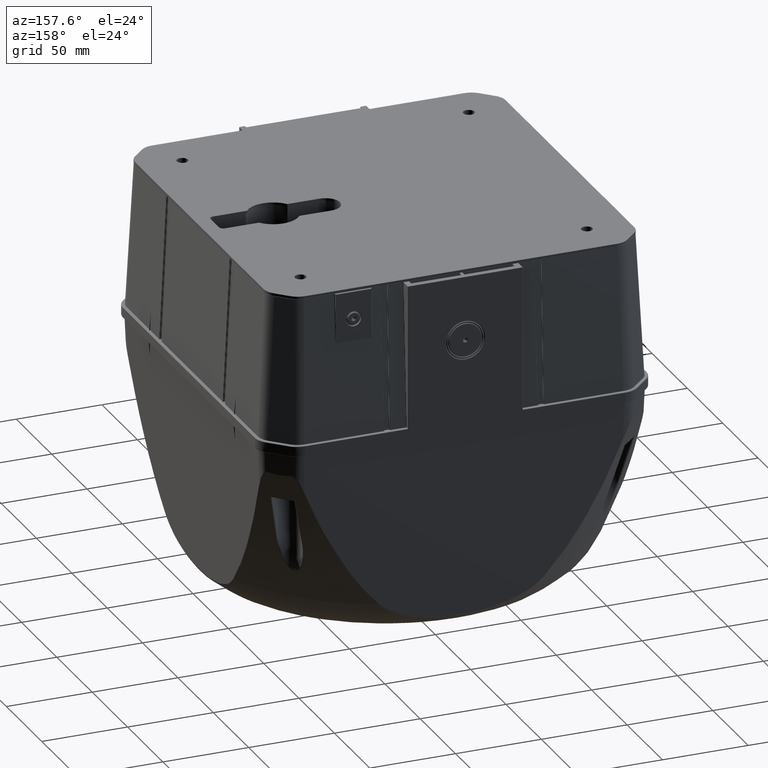
[diagram: clean part render]
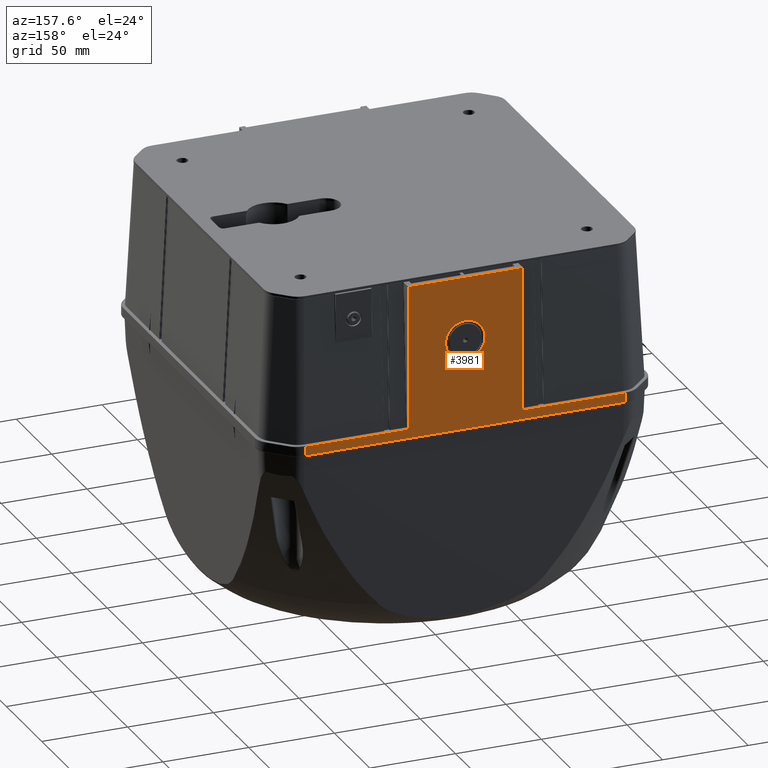
[diagram: same view with one face highlighted and labeled with its STEP entity id]
A machine part, auxiliary view. The second image highlights one B-rep face of the part: STEP entity #3981.
In plain terms, the highlighted planar face has unit normal (-0, -1, 0).
Its self-contained STEP definition (entity closure, byte-faithful):
#3981=ADVANCED_FACE('',(#4734,#4735),#4417,.F.);
#4417=PLANE('',#23812);
#4734=FACE_BOUND('',#6128,.T.);
#4735=FACE_BOUND('',#6129,.T.);
#6128=EDGE_LOOP('',(#13992));
#6129=EDGE_LOOP('',(#13993,#13994,#13995,#13996,#13997,#13998,#13999,#14000,
#14001,#14002));
#6721=LINE('',#37879,#7948);
#6728=LINE('',#37982,#7955);
#6855=LINE('',#40123,#8082);
#7069=LINE('',#42302,#8296);
#7088=LINE('',#42938,#8315);
#7175=LINE('',#43523,#8402);
#7462=LINE('',#46799,#8689);
#7463=LINE('',#46820,#8690);
#7948=VECTOR('',#25989,1.);
#7955=VECTOR('',#26040,1.);
#8082=VECTOR('',#26851,1.);
#8296=VECTOR('',#27947,1.);
#8315=VECTOR('',#28016,1.);
#8402=VECTOR('',#28267,1.);
#8689=VECTOR('',#29860,1.);
#8690=VECTOR('',#29861,1.);
#13992=ORIENTED_EDGE('',*,*,#19797,.F.);
#13993=ORIENTED_EDGE('',*,*,#19107,.T.);
#13994=ORIENTED_EDGE('',*,*,#18152,.T.);
#13995=ORIENTED_EDGE('',*,*,#18149,.T.);
#13996=ORIENTED_EDGE('',*,*,#18537,.T.);
#13997=ORIENTED_EDGE('',*,*,#18125,.T.);
#13998=ORIENTED_EDGE('',*,*,#18128,.T.);
#13999=ORIENTED_EDGE('',*,*,#19056,.T.);
#14000=ORIENTED_EDGE('',*,*,#19887,.T.);
#14001=ORIENTED_EDGE('',*,*,#19236,.T.);
#14002=ORIENTED_EDGE('',*,*,#19886,.F.);
#15990=VERTEX_POINT('',#37854);
#15994=VERTEX_POINT('',#37878);
#15995=VERTEX_POINT('',#37883);
#16008=VERTEX_POINT('',#37960);
#16009=VERTEX_POINT('',#37979);
#16012=VERTEX_POINT('',#37986);
#16557=VERTEX_POINT('',#42303);
#16588=VERTEX_POINT('',#42866);
#16628=VERTEX_POINT('',#43447);
#16632=VERTEX_POINT('',#43522);
#16948=VERTEX_POINT('',#46466);
#18125=EDGE_CURVE('',#15990,#15994,#6721,.T.);
#18128=EDGE_CURVE('',#15994,#15995,#20745,.T.);
#18149=EDGE_CURVE('',#16009,#16008,#6728,.T.);
#18152=EDGE_CURVE('',#16012,#16009,#20759,.T.);
#18537=EDGE_CURVE('',#16008,#15990,#6855,.T.);
#19056=EDGE_CURVE('',#15995,#16557,#7069,.T.);
#19107=EDGE_CURVE('',#16588,#16012,#7088,.T.);
#19236=EDGE_CURVE('',#16628,#16632,#7175,.T.);
#19797=EDGE_CURVE('',#16948,#16948,#21349,.T.);
#19886=EDGE_CURVE('',#16588,#16632,#7462,.T.);
#19887=EDGE_CURVE('',#16557,#16628,#7463,.T.);
#20745=CIRCLE('',#22249,0.5);
#20759=CIRCLE('',#22272,0.5);
#21349=CIRCLE('',#23627,11.51);
#22249=AXIS2_PLACEMENT_3D('',#37885,#25995,#25996);
#22272=AXIS2_PLACEMENT_3D('',#37988,#26047,#26048);
#23627=AXIS2_PLACEMENT_3D('',#46465,#29416,#29417);
#23812=AXIS2_PLACEMENT_3D('',#46821,#29862,#29863);
#25989=DIRECTION('',(0.,-2.31296463463574E-016,1.));
#25995=DIRECTION('',(1.,0.,0.));
#25996=DIRECTION('',(0.,0.,-1.));
#26040=DIRECTION('',(0.,4.62592926927149E-016,-1.));
#26047=DIRECTION('',(1.,0.,0.));
#26048=DIRECTION('',(0.,0.,-1.));
#26851=DIRECTION('',(0.,-1.,0.));
#27947=DIRECTION('',(0.,-1.,0.));
#28016=DIRECTION('',(0.,-1.,0.));
#28267=DIRECTION('',(0.,1.,0.));
#29416=DIRECTION('',(-1.,0.,0.));
#29417=DIRECTION('',(0.,0.,-1.));
#29860=DIRECTION('',(0.,0.,1.));
#29861=DIRECTION('',(0.,0.,1.));
#29862=DIRECTION('',(1.,0.,0.));
#29863=DIRECTION('',(0.,0.,-1.));
#37854=CARTESIAN_POINT('',(-342.6,-33.25,0.2));
#37878=CARTESIAN_POINT('',(-342.6,-33.25,83.75));
#37879=CARTESIAN_POINT('',(-342.6,-33.25,90.));
#37883=CARTESIAN_POINT('',(-342.6,-33.75,84.25));
#37885=CARTESIAN_POINT('',(-342.6,-33.75,83.75));
#37960=CARTESIAN_POINT('',(-342.6,33.25,0.2));
#37979=CARTESIAN_POINT('',(-342.6,33.25,83.75));
#37982=CARTESIAN_POINT('',(-342.6,33.25,90.));
#37986=CARTESIAN_POINT('',(-342.6,33.75,84.25));
#37988=CARTESIAN_POINT('',(-342.6,33.75,83.75));
#40123=CARTESIAN_POINT('',(-342.6,-33.5,0.2));
#42302=CARTESIAN_POINT('',(-342.6,33.5,84.25));
#42303=CARTESIAN_POINT('',(-342.6,-93.3635410291832,84.25));
#42866=CARTESIAN_POINT('',(-342.6,93.3635410291832,84.25));
#42938=CARTESIAN_POINT('',(-342.6,33.5,84.25));
#43447=CARTESIAN_POINT('',(-342.6,-93.3635410291832,89.7));
#43522=CARTESIAN_POINT('',(-342.6,93.3635410291832,89.7));
#43523=CARTESIAN_POINT('',(-342.6,33.5,89.7));
#46465=CARTESIAN_POINT('',(-342.6,-1.39850045606515E-014,37.25));
#46466=CARTESIAN_POINT('',(-342.6,-1.39850045606515E-014,25.74));
#46799=CARTESIAN_POINT('',(-342.6,93.3635410291832,84.));
#46820=CARTESIAN_POINT('',(-342.6,-93.3635410291832,84.));
#46821=CARTESIAN_POINT('',(-342.6,33.5,90.));